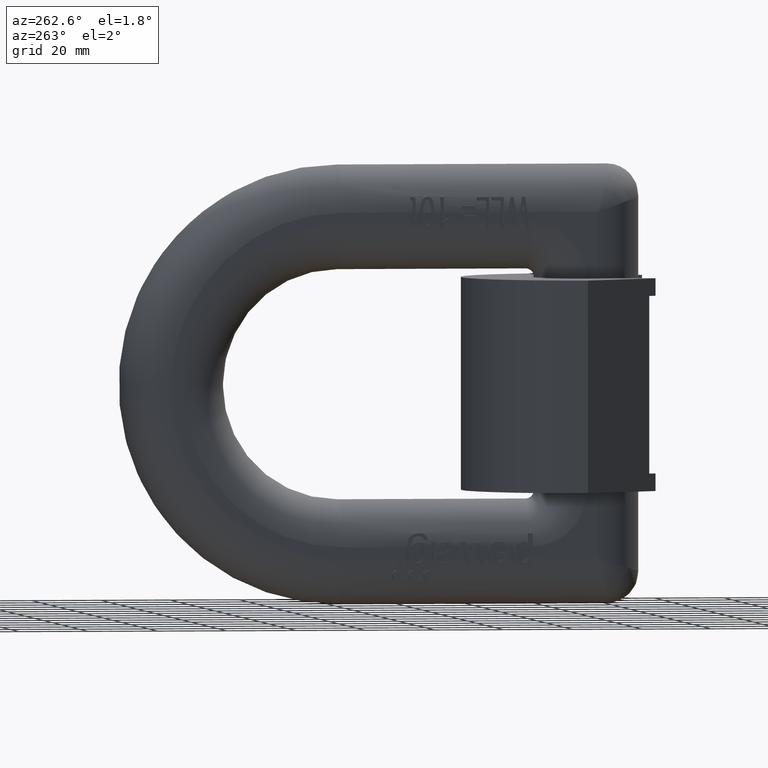
[diagram: clean part render]
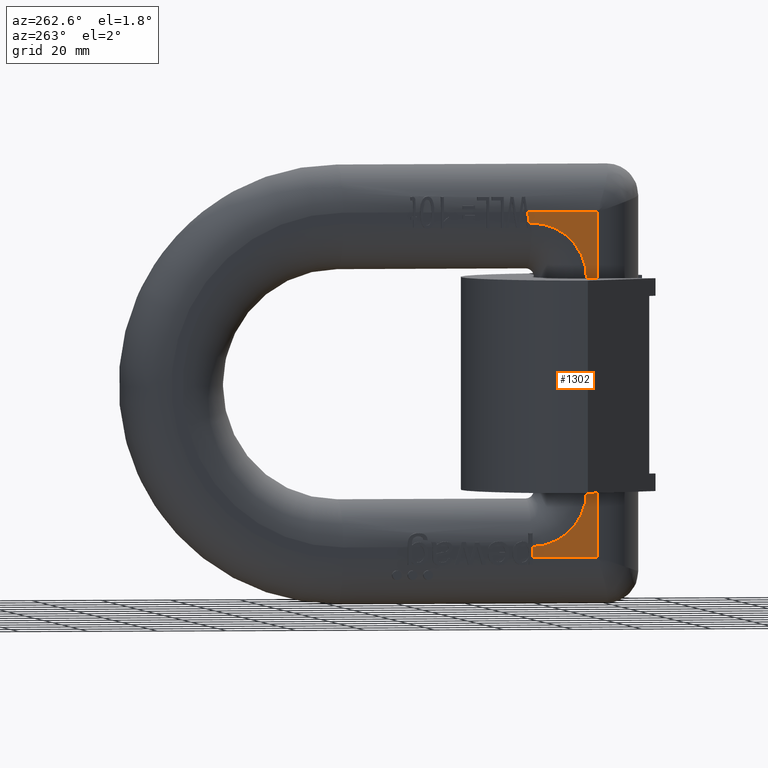
[diagram: same view with one face highlighted and labeled with its STEP entity id]
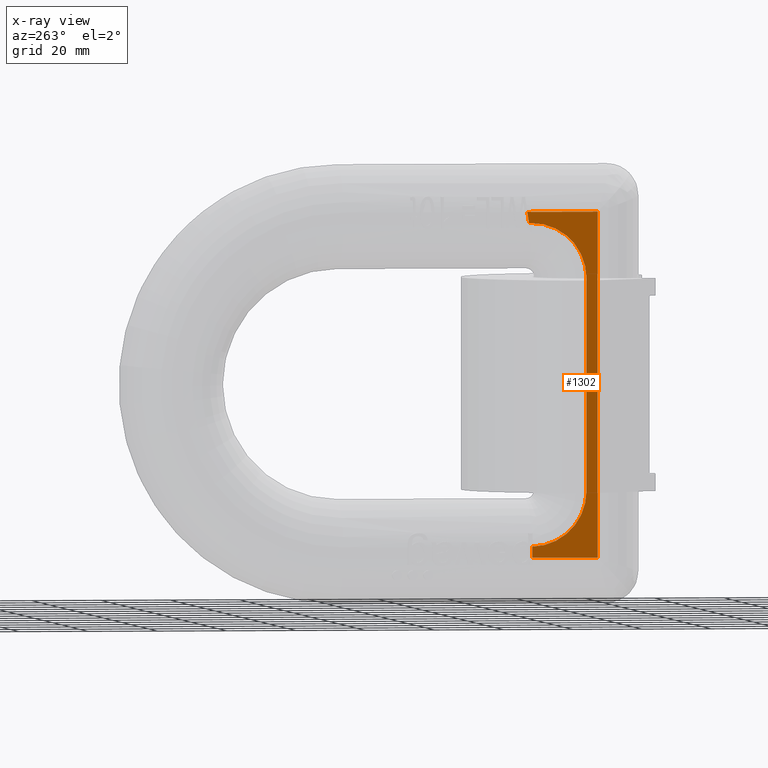
[diagram: x-ray of the same camera — body ghosted, the highlighted face saturated]
A machine part, auxiliary view. The second image highlights one B-rep face of the part: STEP entity #1302.
The next image is the same camera in x-ray: the body ghosted, the highlighted face saturated — about 0% of this face is hidden behind the body in this view.
In plain terms, the highlighted planar face has unit normal (-1, 0, 0).
Its self-contained STEP definition (entity closure, byte-faithful):
#1048=PLANE('',#8957);
#1302=ADVANCED_FACE('',(#1824),#1048,.T.);
#1824=FACE_OUTER_BOUND('',#2268,.T.);
#2268=EDGE_LOOP('',(#2962,#2963,#2964,#2965,#2966,#2967,#2968,#2969,#2970));
#2746=CIRCLE('',#8955,15.9);
#2747=CIRCLE('',#8956,15.9);
#2962=ORIENTED_EDGE('',*,*,#6358,.F.);
#2963=ORIENTED_EDGE('',*,*,#6359,.T.);
#2964=ORIENTED_EDGE('',*,*,#6360,.T.);
#2965=ORIENTED_EDGE('',*,*,#6361,.T.);
#2966=ORIENTED_EDGE('',*,*,#6362,.T.);
#2967=ORIENTED_EDGE('',*,*,#6363,.F.);
#2968=ORIENTED_EDGE('',*,*,#6364,.T.);
#2969=ORIENTED_EDGE('',*,*,#6365,.T.);
#2970=ORIENTED_EDGE('',*,*,#6366,.T.);
#5470=VERTEX_POINT('',#11195);
#5471=VERTEX_POINT('',#11196);
#5472=VERTEX_POINT('',#11198);
#5473=VERTEX_POINT('',#11200);
#5474=VERTEX_POINT('',#11202);
#5475=VERTEX_POINT('',#11204);
#5476=VERTEX_POINT('',#11206);
#5477=VERTEX_POINT('',#11208);
#5478=VERTEX_POINT('',#11210);
#6358=EDGE_CURVE('',#5470,#5471,#7640,.T.);
#6359=EDGE_CURVE('',#5470,#5472,#7641,.T.);
#6360=EDGE_CURVE('',#5472,#5473,#2746,.T.);
#6361=EDGE_CURVE('',#5473,#5474,#7642,.T.);
#6362=EDGE_CURVE('',#5474,#5475,#2747,.T.);
#6363=EDGE_CURVE('',#5476,#5475,#7643,.T.);
#6364=EDGE_CURVE('',#5476,#5477,#7644,.T.);
#6365=EDGE_CURVE('',#5477,#5478,#7645,.T.);
#6366=EDGE_CURVE('',#5478,#5471,#7646,.T.);
#7640=LINE('',#11194,#8232);
#7641=LINE('',#11197,#8233);
#7642=LINE('',#11201,#8234);
#7643=LINE('',#11205,#8235);
#7644=LINE('',#11207,#8236);
#7645=LINE('',#11209,#8237);
#7646=LINE('',#11211,#8238);
#8232=VECTOR('',#9527,1.);
#8233=VECTOR('',#9528,1.);
#8234=VECTOR('',#9531,1.);
#8235=VECTOR('',#9534,1.);
#8236=VECTOR('',#9535,1.);
#8237=VECTOR('',#9536,1.);
#8238=VECTOR('',#9537,1.);
#8955=AXIS2_PLACEMENT_3D('',#11199,#9529,#9530);
#8956=AXIS2_PLACEMENT_3D('',#11203,#9532,#9533);
#8957=AXIS2_PLACEMENT_3D('',#11212,#9538,#9539);
#9527=DIRECTION('',(0.,0.157470076229692,0.987523759254538));
#9528=DIRECTION('',(0.,-1.,-3.81957462600398E-16));
#9529=DIRECTION('',(1.,0.,0.));
#9530=DIRECTION('',(0.,0.,1.));
#9531=DIRECTION('',(0.,0.,-1.));
#9532=DIRECTION('',(1.,0.,0.));
#9533=DIRECTION('',(0.,0.,1.));
#9534=DIRECTION('',(0.,0.,1.));
#9535=DIRECTION('',(0.,-1.,1.77920356510442E-16));
#9536=DIRECTION('',(0.,0.,1.));
#9537=DIRECTION('',(0.,1.,1.77920356510442E-16));
#9538=DIRECTION('',(-1.,0.,0.));
#9539=DIRECTION('',(0.,0.,1.));
#11194=CARTESIAN_POINT('',(-13.5,36.8044251770492,50.0446979762673));
#11195=CARTESIAN_POINT('',(-13.5,36.2232433444315,46.4));
#11196=CARTESIAN_POINT('',(-13.5,36.7335138459893,49.6));
#11197=CARTESIAN_POINT('',(-13.5,35.5,46.4));
#11198=CARTESIAN_POINT('',(-13.5,35.5,46.4));
#11199=CARTESIAN_POINT('',(-13.5,35.5,30.5));
#11200=CARTESIAN_POINT('',(-13.5,19.6,30.5));
#11201=CARTESIAN_POINT('',(-13.5,19.6,-30.5));
#11202=CARTESIAN_POINT('',(-13.5,19.6,-30.5));
#11203=CARTESIAN_POINT('',(-13.5,35.5,-30.5));
#11204=CARTESIAN_POINT('',(-13.5,35.25,-46.3980344697072));
#11205=CARTESIAN_POINT('',(-13.5,35.25,54.));
#11206=CARTESIAN_POINT('',(-13.5,35.25,-49.6));
#11207=CARTESIAN_POINT('',(-13.5,12.,-49.6));
#11208=CARTESIAN_POINT('',(-13.5,16.4,-49.6));
#11209=CARTESIAN_POINT('',(-13.5,16.4,54.));
#11210=CARTESIAN_POINT('',(-13.5,16.4,49.6));
#11211=CARTESIAN_POINT('',(-13.5,90.,49.6));
#11212=CARTESIAN_POINT('',(-13.5,12.,54.));